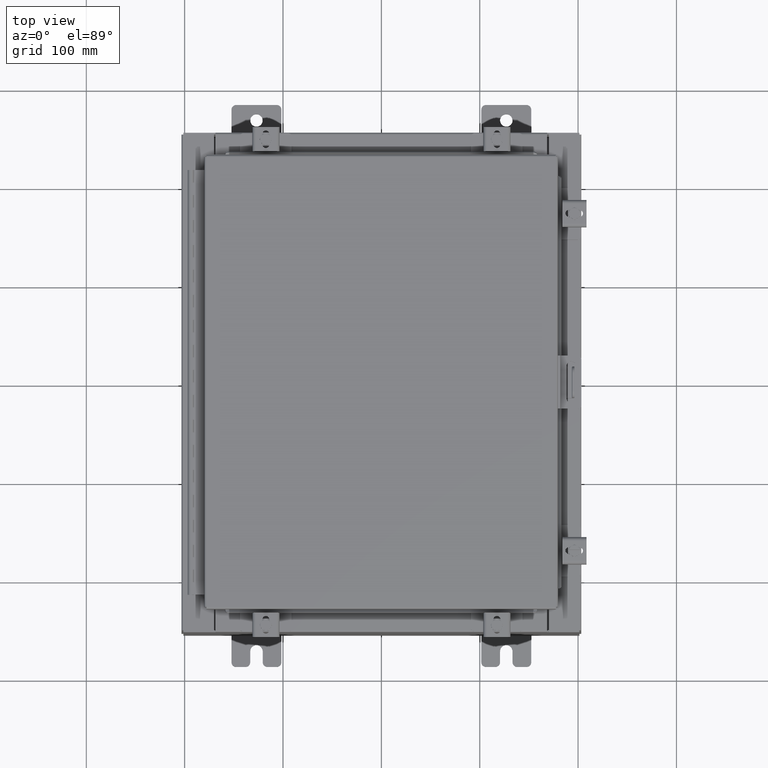
[diagram: clean part render]
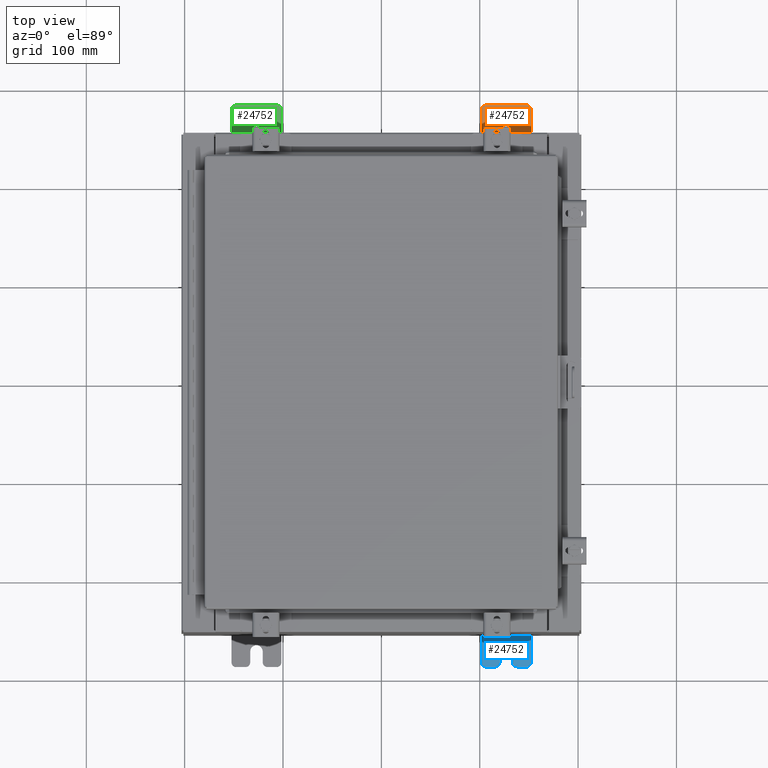
[diagram: same view with three faces highlighted in distinct colors, each labeled with its STEP entity id]
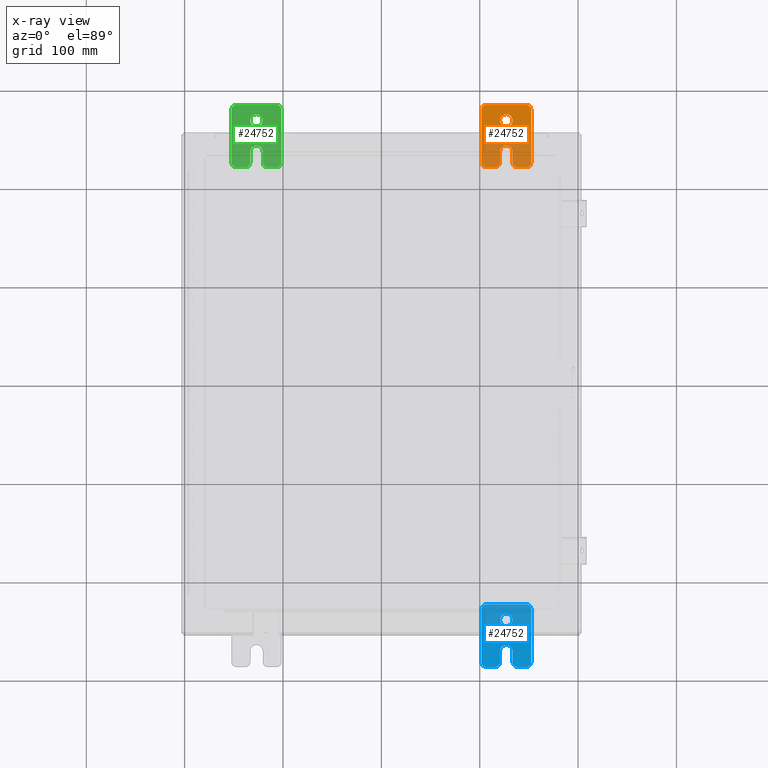
[diagram: x-ray of the same camera — body ghosted, the three highlighted faces saturated]
A machine part, top view with three faces highlighted in distinct colors.
The next image is the same camera in x-ray (body ghosted, the three faces saturated) — at least one of them is partly hidden behind the body in this view.
Their STEP definitions:

[orange] entity #24752 — the highlighted planar face has unit normal (0, 0, 1).
#510 = ORIENTED_EDGE ( 'NONE', *, *, #27260, .T. ) ;
#514 = CARTESIAN_POINT ( 'NONE',  ( 0.0000000000000000000, 0.0000000000000000000, 0.0000000000000000000 ) ) ;
#690 = DIRECTION ( 'NONE',  ( 0.0000000000000000000, -1.639108796198553600E-015, -1.000000000000000000 ) ) ;
#1029 = CARTESIAN_POINT ( 'NONE',  ( 0.0000000000000000000, -1.060000000000004100, -0.8100000000000050500 ) ) ;
#1070 = VERTEX_POINT ( 'NONE', #10648 ) ;
#1075 = VERTEX_POINT ( 'NONE', #28833 ) ;
#1352 = AXIS2_PLACEMENT_3D ( 'NONE', #16169, #2537, #18463 ) ;
#1666 = ORIENTED_EDGE ( 'NONE', *, *, #19814, .F. ) ;
#2408 = VERTEX_POINT ( 'NONE', #27002 ) ;
#2468 = LINE ( 'NONE', #8462, #20591 ) ;
#2537 = DIRECTION ( 'NONE',  ( 1.000000000000000000, 0.0000000000000000000, -0.0000000000000000000 ) ) ;
#2547 = CARTESIAN_POINT ( 'NONE',  ( 4.780733988912460100E-016, -0.6249999999999993300, -0.2499999999999993900 ) ) ;
#2594 = DIRECTION ( 'NONE',  ( 0.0000000000000000000, -1.639108796198553600E-015, -1.000000000000000000 ) ) ;
#2758 = VECTOR ( 'NONE', #27844, 39.37007874015748100 ) ;
#3201 = FACE_OUTER_BOUND ( 'NONE', #15350, .T. ) ;
#3322 = DIRECTION ( 'NONE',  ( 0.0000000000000000000, 0.0000000000000000000, -1.000000000000000000 ) ) ;
#3345 = LINE ( 'NONE', #2547, #8678 ) ;
#3454 = ORIENTED_EDGE ( 'NONE', *, *, #5480, .F. ) ;
#3864 = ORIENTED_EDGE ( 'NONE', *, *, #7414, .T. ) ;
#4107 = VERTEX_POINT ( 'NONE', #11406 ) ;
#4707 = CARTESIAN_POINT ( 'NONE',  ( 0.0000000000000000000, 1.249999999999997600, 0.9999999999999951200 ) ) ;
#4826 = DIRECTION ( 'NONE',  ( -6.556435184794182400E-016, -1.000000000000000000, -1.639108796198545600E-016 ) ) ;
#4869 = LINE ( 'NONE', #4707, #16266 ) ;
#5094 = DIRECTION ( 'NONE',  ( 1.000000000000000000, 0.0000000000000000000, -0.0000000000000000000 ) ) ;
#5402 = CARTESIAN_POINT ( 'NONE',  ( 4.039428427013647300E-016, 0.6249999999999992200, -9.783840404509077400E-018 ) ) ;
#5480 = EDGE_CURVE ( 'NONE', #25933, #17534, #23495, .T. ) ;
#5635 = CIRCLE ( 'NONE', #1352, 0.1900000000000011100 ) ;
#6022 = ORIENTED_EDGE ( 'NONE', *, *, #12471, .T. ) ;
#6085 = ORIENTED_EDGE ( 'NONE', *, *, #15577, .T. ) ;
#6402 = DIRECTION ( 'NONE',  ( 1.000000000000000000, 0.0000000000000000000, -0.0000000000000000000 ) ) ;
#6734 = ORIENTED_EDGE ( 'NONE', *, *, #12816, .T. ) ;
#7366 = CIRCLE ( 'NONE', #20611, 0.2499999999999999200 ) ;
#7414 = EDGE_CURVE ( 'NONE', #12318, #24871, #23390, .T. ) ;
#7451 = CARTESIAN_POINT ( 'NONE',  ( 0.0000000000000000000, -1.250000000000002200, 0.9999999999999992200 ) ) ;
#7522 = EDGE_CURVE ( 'NONE', #8264, #26711, #9200, .T. ) ;
#7682 = CARTESIAN_POINT ( 'NONE',  ( 4.780733988912460100E-016, -0.6249999999999993300, -0.2499999999999998600 ) ) ;
#7689 = DIRECTION ( 'NONE',  ( -5.163192708025533800E-017, 0.0000000000000000000, -1.000000000000000000 ) ) ;
#7767 = EDGE_CURVE ( 'NONE', #2408, #12318, #2468, .T. ) ;
#8264 = VERTEX_POINT ( 'NONE', #25468 ) ;
#8287 = AXIS2_PLACEMENT_3D ( 'NONE', #10841, #26720, #13144 ) ;
#8343 = CARTESIAN_POINT ( 'NONE',  ( 4.039428427013647300E-016, 0.6249999999999992200, -9.783840404509077400E-018 ) ) ;
#8462 = CARTESIAN_POINT ( 'NONE',  ( 6.829619984160658000E-017, -1.250000000000003800, 0.2500000000000005000 ) ) ;
#8511 = VECTOR ( 'NONE', #22746, 39.37007874015748100 ) ;
#8549 = ORIENTED_EDGE ( 'NONE', *, *, #11742, .T. ) ;
#8678 = VECTOR ( 'NONE', #4826, 39.37007874015748100 ) ;
#8999 = AXIS2_PLACEMENT_3D ( 'NONE', #10268, #26132, #12557 ) ;
#9139 = AXIS2_PLACEMENT_3D ( 'NONE', #20023, #6402, #22272 ) ;
#9200 = CIRCLE ( 'NONE', #22668, 0.1900000000000011100 ) ;
#9288 = DIRECTION ( 'NONE',  ( 0.0000000000000000000, -1.000000000000000000, 1.639108796198558100E-015 ) ) ;
#9500 = AXIS2_PLACEMENT_3D ( 'NONE', #8343, #24194, #10622 ) ;
#9786 = AXIS2_PLACEMENT_3D ( 'NONE', #514, #5094, #20987 ) ;
#10075 = CARTESIAN_POINT ( 'NONE',  ( 1.928684683526964400E-016, -1.060000000000003400, -0.2499999999999994400 ) ) ;
#10154 = ORIENTED_EDGE ( 'NONE', *, *, #13170, .T. ) ;
#10268 = CARTESIAN_POINT ( 'NONE',  ( 4.780733988912460100E-016, -0.6249999999999993300, 5.858939755051854500E-017 ) ) ;
#10622 = DIRECTION ( 'NONE',  ( -5.163192708025533800E-017, 0.0000000000000000000, -1.000000000000000000 ) ) ;
#10648 = CARTESIAN_POINT ( 'NONE',  ( 0.0000000000000000000, 1.059999999999996500, 0.9999999999999953400 ) ) ;
#10683 = CARTESIAN_POINT ( 'NONE',  ( 3.910348609313009100E-016, 0.6249999999999992200, -0.2499999999999999200 ) ) ;
#10841 = CARTESIAN_POINT ( 'NONE',  ( 0.0000000000000000000, -1.060000000000003400, -0.4400000000000005000 ) ) ;
#10926 = LINE ( 'NONE', #13932, #27617 ) ;
#11368 = CARTESIAN_POINT ( 'NONE',  ( 0.0000000000000000000, -1.250000000000005600, -1.000000000000006200 ) ) ;
#11406 = CARTESIAN_POINT ( 'NONE',  ( 0.0000000000000000000, -1.060000000000004500, -1.000000000000006400 ) ) ;
#11742 = EDGE_CURVE ( 'NONE', #15698, #2408, #16301, .T. ) ;
#11809 = ORIENTED_EDGE ( 'NONE', *, *, #7522, .T. ) ;
#11819 = CARTESIAN_POINT ( 'NONE',  ( 0.0000000000000000000, 1.249999999999994700, -0.8100000000000092700 ) ) ;
#12242 = ORIENTED_EDGE ( 'NONE', *, *, #22356, .T. ) ;
#12318 = VERTEX_POINT ( 'NONE', #24575 ) ;
#12358 = ORIENTED_EDGE ( 'NONE', *, *, #20482, .T. ) ;
#12471 = EDGE_CURVE ( 'NONE', #1075, #1070, #5635, .T. ) ;
#12557 = DIRECTION ( 'NONE',  ( -6.523827964459551700E-016, -1.000000000000000000, 0.0000000000000000000 ) ) ;
#12816 = EDGE_CURVE ( 'NONE', #16542, #29302, #19846, .T. ) ;
#12958 = CARTESIAN_POINT ( 'NONE',  ( 0.0000000000000000000, -1.060000000000001600, 0.8099999999999978300 ) ) ;
#12981 = CARTESIAN_POINT ( 'NONE',  ( 0.0000000000000000000, 1.059999999999993600, -0.8100000000000089400 ) ) ;
#13050 = EDGE_CURVE ( 'NONE', #29302, #1075, #13439, .T. ) ;
#13144 = DIRECTION ( 'NONE',  ( 0.0000000000000000000, 0.0000000000000000000, -1.000000000000000000 ) ) ;
#13170 = EDGE_CURVE ( 'NONE', #22327, #4107, #27966, .T. ) ;
#13439 = LINE ( 'NONE', #14253, #2758 ) ;
#13932 = CARTESIAN_POINT ( 'NONE',  ( 0.0000000000000000000, -1.250000000000002200, 0.9999999999999992200 ) ) ;
#14253 = CARTESIAN_POINT ( 'NONE',  ( 0.0000000000000000000, 1.249999999999994200, -1.000000000000010400 ) ) ;
#15249 = DIRECTION ( 'NONE',  ( 0.0000000000000000000, 0.0000000000000000000, -1.000000000000000000 ) ) ;
#15278 = DIRECTION ( 'NONE',  ( 0.0000000000000000000, 0.0000000000000000000, -1.000000000000000000 ) ) ;
#15313 = FACE_BOUND ( 'NONE', #26076, .T. ) ;
#15350 = EDGE_LOOP ( 'NONE', ( #23053, #11809, #6085, #8549, #27349, #3864, #12242, #12358, #510, #10154, #17813, #6734, #21886, #6022 ) ) ;
#15577 = EDGE_CURVE ( 'NONE', #26711, #15698, #24231, .T. ) ;
#15698 = VERTEX_POINT ( 'NONE', #26201 ) ;
#16031 = AXIS2_PLACEMENT_3D ( 'NONE', #12981, #28859, #15278 ) ;
#16169 = CARTESIAN_POINT ( 'NONE',  ( 0.0000000000000000000, 1.059999999999996300, 0.8099999999999938400 ) ) ;
#16266 = VECTOR ( 'NONE', #9288, 39.37007874015748100 ) ;
#16301 = CIRCLE ( 'NONE', #9139, 0.1900000000000011400 ) ;
#16542 = VERTEX_POINT ( 'NONE', #16705 ) ;
#16705 = CARTESIAN_POINT ( 'NONE',  ( 0.0000000000000000000, 1.059999999999993400, -1.000000000000010000 ) ) ;
#16946 = DIRECTION ( 'NONE',  ( 1.000000000000000000, 0.0000000000000000000, -0.0000000000000000000 ) ) ;
#17534 = VERTEX_POINT ( 'NONE', #10683 ) ;
#17662 = EDGE_CURVE ( 'NONE', #4107, #16542, #20571, .T. ) ;
#17813 = ORIENTED_EDGE ( 'NONE', *, *, #17662, .T. ) ;
#18463 = DIRECTION ( 'NONE',  ( 0.0000000000000000000, 0.0000000000000000000, -1.000000000000000000 ) ) ;
#18732 = PLANE ( 'NONE',  #9786 ) ;
#19636 = EDGE_CURVE ( 'NONE', #1070, #8264, #4869, .T. ) ;
#19814 = EDGE_CURVE ( 'NONE', #17534, #25933, #7366, .T. ) ;
#19842 = VERTEX_POINT ( 'NONE', #10075 ) ;
#19846 = CIRCLE ( 'NONE', #16031, 0.1900000000000011100 ) ;
#20023 = CARTESIAN_POINT ( 'NONE',  ( 0.0000000000000000000, -1.060000000000002100, 0.4400000000000016700 ) ) ;
#20270 = VERTEX_POINT ( 'NONE', #28233 ) ;
#20482 = EDGE_CURVE ( 'NONE', #19842, #20270, #21873, .T. ) ;
#20571 = LINE ( 'NONE', #11368, #8511 ) ;
#20591 = VECTOR ( 'NONE', #24318, 39.37007874015748100 ) ;
#20611 = AXIS2_PLACEMENT_3D ( 'NONE', #5402, #21301, #7689 ) ;
#20987 = DIRECTION ( 'NONE',  ( -0.0000000000000000000, 0.0000000000000000000, -1.000000000000000000 ) ) ;
#21301 = DIRECTION ( 'NONE',  ( 1.000000000000000000, -0.0000000000000000000, -5.163192708025532000E-017 ) ) ;
#21873 = CIRCLE ( 'NONE', #8287, 0.1900000000000011100 ) ;
#21886 = ORIENTED_EDGE ( 'NONE', *, *, #13050, .T. ) ;
#22272 = DIRECTION ( 'NONE',  ( 0.0000000000000000000, 0.0000000000000000000, -1.000000000000000000 ) ) ;
#22327 = VERTEX_POINT ( 'NONE', #25169 ) ;
#22356 = EDGE_CURVE ( 'NONE', #24871, #19842, #3345, .T. ) ;
#22668 = AXIS2_PLACEMENT_3D ( 'NONE', #12958, #28839, #15249 ) ;
#22746 = DIRECTION ( 'NONE',  ( 0.0000000000000000000, 1.000000000000000000, -1.639108796198558100E-015 ) ) ;
#23053 = ORIENTED_EDGE ( 'NONE', *, *, #19636, .T. ) ;
#23390 = CIRCLE ( 'NONE', #8999, 0.2499999999999999200 ) ;
#23495 = CIRCLE ( 'NONE', #9500, 0.2499999999999999200 ) ;
#23514 = VECTOR ( 'NONE', #690, 39.37007874015748100 ) ;
#24194 = DIRECTION ( 'NONE',  ( 1.000000000000000000, -0.0000000000000000000, -5.163192708025532000E-017 ) ) ;
#24231 = LINE ( 'NONE', #7451, #23514 ) ;
#24318 = DIRECTION ( 'NONE',  ( 6.556435184794182400E-016, 1.000000000000000000, 0.0000000000000000000 ) ) ;
#24575 = CARTESIAN_POINT ( 'NONE',  ( 0.0000000000000000000, -0.6249999999999992200, 0.2500000000000005000 ) ) ;
#24752 = ADVANCED_FACE ( 'NONE', ( #15313, #3201 ), #18732, .T. ) ;
#24786 = CARTESIAN_POINT ( 'NONE',  ( 4.168508244714285900E-016, 0.6249999999999992200, 0.2499999999999999200 ) ) ;
#24871 = VERTEX_POINT ( 'NONE', #7682 ) ;
#25169 = CARTESIAN_POINT ( 'NONE',  ( 0.0000000000000000000, -1.250000000000005300, -0.8100000000000047200 ) ) ;
#25468 = CARTESIAN_POINT ( 'NONE',  ( 0.0000000000000000000, -1.060000000000001200, 0.9999999999999988900 ) ) ;
#25933 = VERTEX_POINT ( 'NONE', #24786 ) ;
#26076 = EDGE_LOOP ( 'NONE', ( #1666, #3454 ) ) ;
#26132 = DIRECTION ( 'NONE',  ( -1.000000000000000000, 6.523827964459549700E-016, 5.163192708025532000E-017 ) ) ;
#26201 = CARTESIAN_POINT ( 'NONE',  ( 0.0000000000000000000, -1.250000000000003100, 0.4400000000000020000 ) ) ;
#26711 = VERTEX_POINT ( 'NONE', #28146 ) ;
#26720 = DIRECTION ( 'NONE',  ( 1.000000000000000000, 0.0000000000000000000, -0.0000000000000000000 ) ) ;
#27002 = CARTESIAN_POINT ( 'NONE',  ( 1.928684683526972300E-016, -1.060000000000002100, 0.2500000000000005000 ) ) ;
#27260 = EDGE_CURVE ( 'NONE', #20270, #22327, #10926, .T. ) ;
#27349 = ORIENTED_EDGE ( 'NONE', *, *, #7767, .T. ) ;
#27617 = VECTOR ( 'NONE', #2594, 39.37007874015748100 ) ;
#27844 = DIRECTION ( 'NONE',  ( 0.0000000000000000000, 1.639108796198553600E-015, 1.000000000000000000 ) ) ;
#27966 = CIRCLE ( 'NONE', #29174, 0.1900000000000011100 ) ;
#28146 = CARTESIAN_POINT ( 'NONE',  ( 0.0000000000000000000, -1.250000000000002400, 0.8099999999999980500 ) ) ;
#28233 = CARTESIAN_POINT ( 'NONE',  ( 0.0000000000000000000, -1.250000000000004700, -0.4400000000000002200 ) ) ;
#28833 = CARTESIAN_POINT ( 'NONE',  ( 0.0000000000000000000, 1.249999999999997300, 0.8099999999999935000 ) ) ;
#28839 = DIRECTION ( 'NONE',  ( 1.000000000000000000, 0.0000000000000000000, -0.0000000000000000000 ) ) ;
#28859 = DIRECTION ( 'NONE',  ( 1.000000000000000000, 0.0000000000000000000, -0.0000000000000000000 ) ) ;
#29174 = AXIS2_PLACEMENT_3D ( 'NONE', #1029, #16946, #3322 ) ;
#29302 = VERTEX_POINT ( 'NONE', #11819 ) ;

[blue] entity #24752 — the highlighted planar face has unit normal (0, 0, 1).
#510 = ORIENTED_EDGE ( 'NONE', *, *, #27260, .T. ) ;
#514 = CARTESIAN_POINT ( 'NONE',  ( 0.0000000000000000000, 0.0000000000000000000, 0.0000000000000000000 ) ) ;
#690 = DIRECTION ( 'NONE',  ( 0.0000000000000000000, -1.639108796198553600E-015, -1.000000000000000000 ) ) ;
#1029 = CARTESIAN_POINT ( 'NONE',  ( 0.0000000000000000000, -1.060000000000004100, -0.8100000000000050500 ) ) ;
#1070 = VERTEX_POINT ( 'NONE', #10648 ) ;
#1075 = VERTEX_POINT ( 'NONE', #28833 ) ;
#1352 = AXIS2_PLACEMENT_3D ( 'NONE', #16169, #2537, #18463 ) ;
#1666 = ORIENTED_EDGE ( 'NONE', *, *, #19814, .F. ) ;
#2408 = VERTEX_POINT ( 'NONE', #27002 ) ;
#2468 = LINE ( 'NONE', #8462, #20591 ) ;
#2537 = DIRECTION ( 'NONE',  ( 1.000000000000000000, 0.0000000000000000000, -0.0000000000000000000 ) ) ;
#2547 = CARTESIAN_POINT ( 'NONE',  ( 4.780733988912460100E-016, -0.6249999999999993300, -0.2499999999999993900 ) ) ;
#2594 = DIRECTION ( 'NONE',  ( 0.0000000000000000000, -1.639108796198553600E-015, -1.000000000000000000 ) ) ;
#2758 = VECTOR ( 'NONE', #27844, 39.37007874015748100 ) ;
#3201 = FACE_OUTER_BOUND ( 'NONE', #15350, .T. ) ;
#3322 = DIRECTION ( 'NONE',  ( 0.0000000000000000000, 0.0000000000000000000, -1.000000000000000000 ) ) ;
#3345 = LINE ( 'NONE', #2547, #8678 ) ;
#3454 = ORIENTED_EDGE ( 'NONE', *, *, #5480, .F. ) ;
#3864 = ORIENTED_EDGE ( 'NONE', *, *, #7414, .T. ) ;
#4107 = VERTEX_POINT ( 'NONE', #11406 ) ;
#4707 = CARTESIAN_POINT ( 'NONE',  ( 0.0000000000000000000, 1.249999999999997600, 0.9999999999999951200 ) ) ;
#4826 = DIRECTION ( 'NONE',  ( -6.556435184794182400E-016, -1.000000000000000000, -1.639108796198545600E-016 ) ) ;
#4869 = LINE ( 'NONE', #4707, #16266 ) ;
#5094 = DIRECTION ( 'NONE',  ( 1.000000000000000000, 0.0000000000000000000, -0.0000000000000000000 ) ) ;
#5402 = CARTESIAN_POINT ( 'NONE',  ( 4.039428427013647300E-016, 0.6249999999999992200, -9.783840404509077400E-018 ) ) ;
#5480 = EDGE_CURVE ( 'NONE', #25933, #17534, #23495, .T. ) ;
#5635 = CIRCLE ( 'NONE', #1352, 0.1900000000000011100 ) ;
#6022 = ORIENTED_EDGE ( 'NONE', *, *, #12471, .T. ) ;
#6085 = ORIENTED_EDGE ( 'NONE', *, *, #15577, .T. ) ;
#6402 = DIRECTION ( 'NONE',  ( 1.000000000000000000, 0.0000000000000000000, -0.0000000000000000000 ) ) ;
#6734 = ORIENTED_EDGE ( 'NONE', *, *, #12816, .T. ) ;
#7366 = CIRCLE ( 'NONE', #20611, 0.2499999999999999200 ) ;
#7414 = EDGE_CURVE ( 'NONE', #12318, #24871, #23390, .T. ) ;
#7451 = CARTESIAN_POINT ( 'NONE',  ( 0.0000000000000000000, -1.250000000000002200, 0.9999999999999992200 ) ) ;
#7522 = EDGE_CURVE ( 'NONE', #8264, #26711, #9200, .T. ) ;
#7682 = CARTESIAN_POINT ( 'NONE',  ( 4.780733988912460100E-016, -0.6249999999999993300, -0.2499999999999998600 ) ) ;
#7689 = DIRECTION ( 'NONE',  ( -5.163192708025533800E-017, 0.0000000000000000000, -1.000000000000000000 ) ) ;
#7767 = EDGE_CURVE ( 'NONE', #2408, #12318, #2468, .T. ) ;
#8264 = VERTEX_POINT ( 'NONE', #25468 ) ;
#8287 = AXIS2_PLACEMENT_3D ( 'NONE', #10841, #26720, #13144 ) ;
#8343 = CARTESIAN_POINT ( 'NONE',  ( 4.039428427013647300E-016, 0.6249999999999992200, -9.783840404509077400E-018 ) ) ;
#8462 = CARTESIAN_POINT ( 'NONE',  ( 6.829619984160658000E-017, -1.250000000000003800, 0.2500000000000005000 ) ) ;
#8511 = VECTOR ( 'NONE', #22746, 39.37007874015748100 ) ;
#8549 = ORIENTED_EDGE ( 'NONE', *, *, #11742, .T. ) ;
#8678 = VECTOR ( 'NONE', #4826, 39.37007874015748100 ) ;
#8999 = AXIS2_PLACEMENT_3D ( 'NONE', #10268, #26132, #12557 ) ;
#9139 = AXIS2_PLACEMENT_3D ( 'NONE', #20023, #6402, #22272 ) ;
#9200 = CIRCLE ( 'NONE', #22668, 0.1900000000000011100 ) ;
#9288 = DIRECTION ( 'NONE',  ( 0.0000000000000000000, -1.000000000000000000, 1.639108796198558100E-015 ) ) ;
#9500 = AXIS2_PLACEMENT_3D ( 'NONE', #8343, #24194, #10622 ) ;
#9786 = AXIS2_PLACEMENT_3D ( 'NONE', #514, #5094, #20987 ) ;
#10075 = CARTESIAN_POINT ( 'NONE',  ( 1.928684683526964400E-016, -1.060000000000003400, -0.2499999999999994400 ) ) ;
#10154 = ORIENTED_EDGE ( 'NONE', *, *, #13170, .T. ) ;
#10268 = CARTESIAN_POINT ( 'NONE',  ( 4.780733988912460100E-016, -0.6249999999999993300, 5.858939755051854500E-017 ) ) ;
#10622 = DIRECTION ( 'NONE',  ( -5.163192708025533800E-017, 0.0000000000000000000, -1.000000000000000000 ) ) ;
#10648 = CARTESIAN_POINT ( 'NONE',  ( 0.0000000000000000000, 1.059999999999996500, 0.9999999999999953400 ) ) ;
#10683 = CARTESIAN_POINT ( 'NONE',  ( 3.910348609313009100E-016, 0.6249999999999992200, -0.2499999999999999200 ) ) ;
#10841 = CARTESIAN_POINT ( 'NONE',  ( 0.0000000000000000000, -1.060000000000003400, -0.4400000000000005000 ) ) ;
#10926 = LINE ( 'NONE', #13932, #27617 ) ;
#11368 = CARTESIAN_POINT ( 'NONE',  ( 0.0000000000000000000, -1.250000000000005600, -1.000000000000006200 ) ) ;
#11406 = CARTESIAN_POINT ( 'NONE',  ( 0.0000000000000000000, -1.060000000000004500, -1.000000000000006400 ) ) ;
#11742 = EDGE_CURVE ( 'NONE', #15698, #2408, #16301, .T. ) ;
#11809 = ORIENTED_EDGE ( 'NONE', *, *, #7522, .T. ) ;
#11819 = CARTESIAN_POINT ( 'NONE',  ( 0.0000000000000000000, 1.249999999999994700, -0.8100000000000092700 ) ) ;
#12242 = ORIENTED_EDGE ( 'NONE', *, *, #22356, .T. ) ;
#12318 = VERTEX_POINT ( 'NONE', #24575 ) ;
#12358 = ORIENTED_EDGE ( 'NONE', *, *, #20482, .T. ) ;
#12471 = EDGE_CURVE ( 'NONE', #1075, #1070, #5635, .T. ) ;
#12557 = DIRECTION ( 'NONE',  ( -6.523827964459551700E-016, -1.000000000000000000, 0.0000000000000000000 ) ) ;
#12816 = EDGE_CURVE ( 'NONE', #16542, #29302, #19846, .T. ) ;
#12958 = CARTESIAN_POINT ( 'NONE',  ( 0.0000000000000000000, -1.060000000000001600, 0.8099999999999978300 ) ) ;
#12981 = CARTESIAN_POINT ( 'NONE',  ( 0.0000000000000000000, 1.059999999999993600, -0.8100000000000089400 ) ) ;
#13050 = EDGE_CURVE ( 'NONE', #29302, #1075, #13439, .T. ) ;
#13144 = DIRECTION ( 'NONE',  ( 0.0000000000000000000, 0.0000000000000000000, -1.000000000000000000 ) ) ;
#13170 = EDGE_CURVE ( 'NONE', #22327, #4107, #27966, .T. ) ;
#13439 = LINE ( 'NONE', #14253, #2758 ) ;
#13932 = CARTESIAN_POINT ( 'NONE',  ( 0.0000000000000000000, -1.250000000000002200, 0.9999999999999992200 ) ) ;
#14253 = CARTESIAN_POINT ( 'NONE',  ( 0.0000000000000000000, 1.249999999999994200, -1.000000000000010400 ) ) ;
#15249 = DIRECTION ( 'NONE',  ( 0.0000000000000000000, 0.0000000000000000000, -1.000000000000000000 ) ) ;
#15278 = DIRECTION ( 'NONE',  ( 0.0000000000000000000, 0.0000000000000000000, -1.000000000000000000 ) ) ;
#15313 = FACE_BOUND ( 'NONE', #26076, .T. ) ;
#15350 = EDGE_LOOP ( 'NONE', ( #23053, #11809, #6085, #8549, #27349, #3864, #12242, #12358, #510, #10154, #17813, #6734, #21886, #6022 ) ) ;
#15577 = EDGE_CURVE ( 'NONE', #26711, #15698, #24231, .T. ) ;
#15698 = VERTEX_POINT ( 'NONE', #26201 ) ;
#16031 = AXIS2_PLACEMENT_3D ( 'NONE', #12981, #28859, #15278 ) ;
#16169 = CARTESIAN_POINT ( 'NONE',  ( 0.0000000000000000000, 1.059999999999996300, 0.8099999999999938400 ) ) ;
#16266 = VECTOR ( 'NONE', #9288, 39.37007874015748100 ) ;
#16301 = CIRCLE ( 'NONE', #9139, 0.1900000000000011400 ) ;
#16542 = VERTEX_POINT ( 'NONE', #16705 ) ;
#16705 = CARTESIAN_POINT ( 'NONE',  ( 0.0000000000000000000, 1.059999999999993400, -1.000000000000010000 ) ) ;
#16946 = DIRECTION ( 'NONE',  ( 1.000000000000000000, 0.0000000000000000000, -0.0000000000000000000 ) ) ;
#17534 = VERTEX_POINT ( 'NONE', #10683 ) ;
#17662 = EDGE_CURVE ( 'NONE', #4107, #16542, #20571, .T. ) ;
#17813 = ORIENTED_EDGE ( 'NONE', *, *, #17662, .T. ) ;
#18463 = DIRECTION ( 'NONE',  ( 0.0000000000000000000, 0.0000000000000000000, -1.000000000000000000 ) ) ;
#18732 = PLANE ( 'NONE',  #9786 ) ;
#19636 = EDGE_CURVE ( 'NONE', #1070, #8264, #4869, .T. ) ;
#19814 = EDGE_CURVE ( 'NONE', #17534, #25933, #7366, .T. ) ;
#19842 = VERTEX_POINT ( 'NONE', #10075 ) ;
#19846 = CIRCLE ( 'NONE', #16031, 0.1900000000000011100 ) ;
#20023 = CARTESIAN_POINT ( 'NONE',  ( 0.0000000000000000000, -1.060000000000002100, 0.4400000000000016700 ) ) ;
#20270 = VERTEX_POINT ( 'NONE', #28233 ) ;
#20482 = EDGE_CURVE ( 'NONE', #19842, #20270, #21873, .T. ) ;
#20571 = LINE ( 'NONE', #11368, #8511 ) ;
#20591 = VECTOR ( 'NONE', #24318, 39.37007874015748100 ) ;
#20611 = AXIS2_PLACEMENT_3D ( 'NONE', #5402, #21301, #7689 ) ;
#20987 = DIRECTION ( 'NONE',  ( -0.0000000000000000000, 0.0000000000000000000, -1.000000000000000000 ) ) ;
#21301 = DIRECTION ( 'NONE',  ( 1.000000000000000000, -0.0000000000000000000, -5.163192708025532000E-017 ) ) ;
#21873 = CIRCLE ( 'NONE', #8287, 0.1900000000000011100 ) ;
#21886 = ORIENTED_EDGE ( 'NONE', *, *, #13050, .T. ) ;
#22272 = DIRECTION ( 'NONE',  ( 0.0000000000000000000, 0.0000000000000000000, -1.000000000000000000 ) ) ;
#22327 = VERTEX_POINT ( 'NONE', #25169 ) ;
#22356 = EDGE_CURVE ( 'NONE', #24871, #19842, #3345, .T. ) ;
#22668 = AXIS2_PLACEMENT_3D ( 'NONE', #12958, #28839, #15249 ) ;
#22746 = DIRECTION ( 'NONE',  ( 0.0000000000000000000, 1.000000000000000000, -1.639108796198558100E-015 ) ) ;
#23053 = ORIENTED_EDGE ( 'NONE', *, *, #19636, .T. ) ;
#23390 = CIRCLE ( 'NONE', #8999, 0.2499999999999999200 ) ;
#23495 = CIRCLE ( 'NONE', #9500, 0.2499999999999999200 ) ;
#23514 = VECTOR ( 'NONE', #690, 39.37007874015748100 ) ;
#24194 = DIRECTION ( 'NONE',  ( 1.000000000000000000, -0.0000000000000000000, -5.163192708025532000E-017 ) ) ;
#24231 = LINE ( 'NONE', #7451, #23514 ) ;
#24318 = DIRECTION ( 'NONE',  ( 6.556435184794182400E-016, 1.000000000000000000, 0.0000000000000000000 ) ) ;
#24575 = CARTESIAN_POINT ( 'NONE',  ( 0.0000000000000000000, -0.6249999999999992200, 0.2500000000000005000 ) ) ;
#24752 = ADVANCED_FACE ( 'NONE', ( #15313, #3201 ), #18732, .T. ) ;
#24786 = CARTESIAN_POINT ( 'NONE',  ( 4.168508244714285900E-016, 0.6249999999999992200, 0.2499999999999999200 ) ) ;
#24871 = VERTEX_POINT ( 'NONE', #7682 ) ;
#25169 = CARTESIAN_POINT ( 'NONE',  ( 0.0000000000000000000, -1.250000000000005300, -0.8100000000000047200 ) ) ;
#25468 = CARTESIAN_POINT ( 'NONE',  ( 0.0000000000000000000, -1.060000000000001200, 0.9999999999999988900 ) ) ;
#25933 = VERTEX_POINT ( 'NONE', #24786 ) ;
#26076 = EDGE_LOOP ( 'NONE', ( #1666, #3454 ) ) ;
#26132 = DIRECTION ( 'NONE',  ( -1.000000000000000000, 6.523827964459549700E-016, 5.163192708025532000E-017 ) ) ;
#26201 = CARTESIAN_POINT ( 'NONE',  ( 0.0000000000000000000, -1.250000000000003100, 0.4400000000000020000 ) ) ;
#26711 = VERTEX_POINT ( 'NONE', #28146 ) ;
#26720 = DIRECTION ( 'NONE',  ( 1.000000000000000000, 0.0000000000000000000, -0.0000000000000000000 ) ) ;
#27002 = CARTESIAN_POINT ( 'NONE',  ( 1.928684683526972300E-016, -1.060000000000002100, 0.2500000000000005000 ) ) ;
#27260 = EDGE_CURVE ( 'NONE', #20270, #22327, #10926, .T. ) ;
#27349 = ORIENTED_EDGE ( 'NONE', *, *, #7767, .T. ) ;
#27617 = VECTOR ( 'NONE', #2594, 39.37007874015748100 ) ;
#27844 = DIRECTION ( 'NONE',  ( 0.0000000000000000000, 1.639108796198553600E-015, 1.000000000000000000 ) ) ;
#27966 = CIRCLE ( 'NONE', #29174, 0.1900000000000011100 ) ;
#28146 = CARTESIAN_POINT ( 'NONE',  ( 0.0000000000000000000, -1.250000000000002400, 0.8099999999999980500 ) ) ;
#28233 = CARTESIAN_POINT ( 'NONE',  ( 0.0000000000000000000, -1.250000000000004700, -0.4400000000000002200 ) ) ;
#28833 = CARTESIAN_POINT ( 'NONE',  ( 0.0000000000000000000, 1.249999999999997300, 0.8099999999999935000 ) ) ;
#28839 = DIRECTION ( 'NONE',  ( 1.000000000000000000, 0.0000000000000000000, -0.0000000000000000000 ) ) ;
#28859 = DIRECTION ( 'NONE',  ( 1.000000000000000000, 0.0000000000000000000, -0.0000000000000000000 ) ) ;
#29174 = AXIS2_PLACEMENT_3D ( 'NONE', #1029, #16946, #3322 ) ;
#29302 = VERTEX_POINT ( 'NONE', #11819 ) ;

[green] entity #24752 — the highlighted planar face has unit normal (0, 0, 1).
#510 = ORIENTED_EDGE ( 'NONE', *, *, #27260, .T. ) ;
#514 = CARTESIAN_POINT ( 'NONE',  ( 0.0000000000000000000, 0.0000000000000000000, 0.0000000000000000000 ) ) ;
#690 = DIRECTION ( 'NONE',  ( 0.0000000000000000000, -1.639108796198553600E-015, -1.000000000000000000 ) ) ;
#1029 = CARTESIAN_POINT ( 'NONE',  ( 0.0000000000000000000, -1.060000000000004100, -0.8100000000000050500 ) ) ;
#1070 = VERTEX_POINT ( 'NONE', #10648 ) ;
#1075 = VERTEX_POINT ( 'NONE', #28833 ) ;
#1352 = AXIS2_PLACEMENT_3D ( 'NONE', #16169, #2537, #18463 ) ;
#1666 = ORIENTED_EDGE ( 'NONE', *, *, #19814, .F. ) ;
#2408 = VERTEX_POINT ( 'NONE', #27002 ) ;
#2468 = LINE ( 'NONE', #8462, #20591 ) ;
#2537 = DIRECTION ( 'NONE',  ( 1.000000000000000000, 0.0000000000000000000, -0.0000000000000000000 ) ) ;
#2547 = CARTESIAN_POINT ( 'NONE',  ( 4.780733988912460100E-016, -0.6249999999999993300, -0.2499999999999993900 ) ) ;
#2594 = DIRECTION ( 'NONE',  ( 0.0000000000000000000, -1.639108796198553600E-015, -1.000000000000000000 ) ) ;
#2758 = VECTOR ( 'NONE', #27844, 39.37007874015748100 ) ;
#3201 = FACE_OUTER_BOUND ( 'NONE', #15350, .T. ) ;
#3322 = DIRECTION ( 'NONE',  ( 0.0000000000000000000, 0.0000000000000000000, -1.000000000000000000 ) ) ;
#3345 = LINE ( 'NONE', #2547, #8678 ) ;
#3454 = ORIENTED_EDGE ( 'NONE', *, *, #5480, .F. ) ;
#3864 = ORIENTED_EDGE ( 'NONE', *, *, #7414, .T. ) ;
#4107 = VERTEX_POINT ( 'NONE', #11406 ) ;
#4707 = CARTESIAN_POINT ( 'NONE',  ( 0.0000000000000000000, 1.249999999999997600, 0.9999999999999951200 ) ) ;
#4826 = DIRECTION ( 'NONE',  ( -6.556435184794182400E-016, -1.000000000000000000, -1.639108796198545600E-016 ) ) ;
#4869 = LINE ( 'NONE', #4707, #16266 ) ;
#5094 = DIRECTION ( 'NONE',  ( 1.000000000000000000, 0.0000000000000000000, -0.0000000000000000000 ) ) ;
#5402 = CARTESIAN_POINT ( 'NONE',  ( 4.039428427013647300E-016, 0.6249999999999992200, -9.783840404509077400E-018 ) ) ;
#5480 = EDGE_CURVE ( 'NONE', #25933, #17534, #23495, .T. ) ;
#5635 = CIRCLE ( 'NONE', #1352, 0.1900000000000011100 ) ;
#6022 = ORIENTED_EDGE ( 'NONE', *, *, #12471, .T. ) ;
#6085 = ORIENTED_EDGE ( 'NONE', *, *, #15577, .T. ) ;
#6402 = DIRECTION ( 'NONE',  ( 1.000000000000000000, 0.0000000000000000000, -0.0000000000000000000 ) ) ;
#6734 = ORIENTED_EDGE ( 'NONE', *, *, #12816, .T. ) ;
#7366 = CIRCLE ( 'NONE', #20611, 0.2499999999999999200 ) ;
#7414 = EDGE_CURVE ( 'NONE', #12318, #24871, #23390, .T. ) ;
#7451 = CARTESIAN_POINT ( 'NONE',  ( 0.0000000000000000000, -1.250000000000002200, 0.9999999999999992200 ) ) ;
#7522 = EDGE_CURVE ( 'NONE', #8264, #26711, #9200, .T. ) ;
#7682 = CARTESIAN_POINT ( 'NONE',  ( 4.780733988912460100E-016, -0.6249999999999993300, -0.2499999999999998600 ) ) ;
#7689 = DIRECTION ( 'NONE',  ( -5.163192708025533800E-017, 0.0000000000000000000, -1.000000000000000000 ) ) ;
#7767 = EDGE_CURVE ( 'NONE', #2408, #12318, #2468, .T. ) ;
#8264 = VERTEX_POINT ( 'NONE', #25468 ) ;
#8287 = AXIS2_PLACEMENT_3D ( 'NONE', #10841, #26720, #13144 ) ;
#8343 = CARTESIAN_POINT ( 'NONE',  ( 4.039428427013647300E-016, 0.6249999999999992200, -9.783840404509077400E-018 ) ) ;
#8462 = CARTESIAN_POINT ( 'NONE',  ( 6.829619984160658000E-017, -1.250000000000003800, 0.2500000000000005000 ) ) ;
#8511 = VECTOR ( 'NONE', #22746, 39.37007874015748100 ) ;
#8549 = ORIENTED_EDGE ( 'NONE', *, *, #11742, .T. ) ;
#8678 = VECTOR ( 'NONE', #4826, 39.37007874015748100 ) ;
#8999 = AXIS2_PLACEMENT_3D ( 'NONE', #10268, #26132, #12557 ) ;
#9139 = AXIS2_PLACEMENT_3D ( 'NONE', #20023, #6402, #22272 ) ;
#9200 = CIRCLE ( 'NONE', #22668, 0.1900000000000011100 ) ;
#9288 = DIRECTION ( 'NONE',  ( 0.0000000000000000000, -1.000000000000000000, 1.639108796198558100E-015 ) ) ;
#9500 = AXIS2_PLACEMENT_3D ( 'NONE', #8343, #24194, #10622 ) ;
#9786 = AXIS2_PLACEMENT_3D ( 'NONE', #514, #5094, #20987 ) ;
#10075 = CARTESIAN_POINT ( 'NONE',  ( 1.928684683526964400E-016, -1.060000000000003400, -0.2499999999999994400 ) ) ;
#10154 = ORIENTED_EDGE ( 'NONE', *, *, #13170, .T. ) ;
#10268 = CARTESIAN_POINT ( 'NONE',  ( 4.780733988912460100E-016, -0.6249999999999993300, 5.858939755051854500E-017 ) ) ;
#10622 = DIRECTION ( 'NONE',  ( -5.163192708025533800E-017, 0.0000000000000000000, -1.000000000000000000 ) ) ;
#10648 = CARTESIAN_POINT ( 'NONE',  ( 0.0000000000000000000, 1.059999999999996500, 0.9999999999999953400 ) ) ;
#10683 = CARTESIAN_POINT ( 'NONE',  ( 3.910348609313009100E-016, 0.6249999999999992200, -0.2499999999999999200 ) ) ;
#10841 = CARTESIAN_POINT ( 'NONE',  ( 0.0000000000000000000, -1.060000000000003400, -0.4400000000000005000 ) ) ;
#10926 = LINE ( 'NONE', #13932, #27617 ) ;
#11368 = CARTESIAN_POINT ( 'NONE',  ( 0.0000000000000000000, -1.250000000000005600, -1.000000000000006200 ) ) ;
#11406 = CARTESIAN_POINT ( 'NONE',  ( 0.0000000000000000000, -1.060000000000004500, -1.000000000000006400 ) ) ;
#11742 = EDGE_CURVE ( 'NONE', #15698, #2408, #16301, .T. ) ;
#11809 = ORIENTED_EDGE ( 'NONE', *, *, #7522, .T. ) ;
#11819 = CARTESIAN_POINT ( 'NONE',  ( 0.0000000000000000000, 1.249999999999994700, -0.8100000000000092700 ) ) ;
#12242 = ORIENTED_EDGE ( 'NONE', *, *, #22356, .T. ) ;
#12318 = VERTEX_POINT ( 'NONE', #24575 ) ;
#12358 = ORIENTED_EDGE ( 'NONE', *, *, #20482, .T. ) ;
#12471 = EDGE_CURVE ( 'NONE', #1075, #1070, #5635, .T. ) ;
#12557 = DIRECTION ( 'NONE',  ( -6.523827964459551700E-016, -1.000000000000000000, 0.0000000000000000000 ) ) ;
#12816 = EDGE_CURVE ( 'NONE', #16542, #29302, #19846, .T. ) ;
#12958 = CARTESIAN_POINT ( 'NONE',  ( 0.0000000000000000000, -1.060000000000001600, 0.8099999999999978300 ) ) ;
#12981 = CARTESIAN_POINT ( 'NONE',  ( 0.0000000000000000000, 1.059999999999993600, -0.8100000000000089400 ) ) ;
#13050 = EDGE_CURVE ( 'NONE', #29302, #1075, #13439, .T. ) ;
#13144 = DIRECTION ( 'NONE',  ( 0.0000000000000000000, 0.0000000000000000000, -1.000000000000000000 ) ) ;
#13170 = EDGE_CURVE ( 'NONE', #22327, #4107, #27966, .T. ) ;
#13439 = LINE ( 'NONE', #14253, #2758 ) ;
#13932 = CARTESIAN_POINT ( 'NONE',  ( 0.0000000000000000000, -1.250000000000002200, 0.9999999999999992200 ) ) ;
#14253 = CARTESIAN_POINT ( 'NONE',  ( 0.0000000000000000000, 1.249999999999994200, -1.000000000000010400 ) ) ;
#15249 = DIRECTION ( 'NONE',  ( 0.0000000000000000000, 0.0000000000000000000, -1.000000000000000000 ) ) ;
#15278 = DIRECTION ( 'NONE',  ( 0.0000000000000000000, 0.0000000000000000000, -1.000000000000000000 ) ) ;
#15313 = FACE_BOUND ( 'NONE', #26076, .T. ) ;
#15350 = EDGE_LOOP ( 'NONE', ( #23053, #11809, #6085, #8549, #27349, #3864, #12242, #12358, #510, #10154, #17813, #6734, #21886, #6022 ) ) ;
#15577 = EDGE_CURVE ( 'NONE', #26711, #15698, #24231, .T. ) ;
#15698 = VERTEX_POINT ( 'NONE', #26201 ) ;
#16031 = AXIS2_PLACEMENT_3D ( 'NONE', #12981, #28859, #15278 ) ;
#16169 = CARTESIAN_POINT ( 'NONE',  ( 0.0000000000000000000, 1.059999999999996300, 0.8099999999999938400 ) ) ;
#16266 = VECTOR ( 'NONE', #9288, 39.37007874015748100 ) ;
#16301 = CIRCLE ( 'NONE', #9139, 0.1900000000000011400 ) ;
#16542 = VERTEX_POINT ( 'NONE', #16705 ) ;
#16705 = CARTESIAN_POINT ( 'NONE',  ( 0.0000000000000000000, 1.059999999999993400, -1.000000000000010000 ) ) ;
#16946 = DIRECTION ( 'NONE',  ( 1.000000000000000000, 0.0000000000000000000, -0.0000000000000000000 ) ) ;
#17534 = VERTEX_POINT ( 'NONE', #10683 ) ;
#17662 = EDGE_CURVE ( 'NONE', #4107, #16542, #20571, .T. ) ;
#17813 = ORIENTED_EDGE ( 'NONE', *, *, #17662, .T. ) ;
#18463 = DIRECTION ( 'NONE',  ( 0.0000000000000000000, 0.0000000000000000000, -1.000000000000000000 ) ) ;
#18732 = PLANE ( 'NONE',  #9786 ) ;
#19636 = EDGE_CURVE ( 'NONE', #1070, #8264, #4869, .T. ) ;
#19814 = EDGE_CURVE ( 'NONE', #17534, #25933, #7366, .T. ) ;
#19842 = VERTEX_POINT ( 'NONE', #10075 ) ;
#19846 = CIRCLE ( 'NONE', #16031, 0.1900000000000011100 ) ;
#20023 = CARTESIAN_POINT ( 'NONE',  ( 0.0000000000000000000, -1.060000000000002100, 0.4400000000000016700 ) ) ;
#20270 = VERTEX_POINT ( 'NONE', #28233 ) ;
#20482 = EDGE_CURVE ( 'NONE', #19842, #20270, #21873, .T. ) ;
#20571 = LINE ( 'NONE', #11368, #8511 ) ;
#20591 = VECTOR ( 'NONE', #24318, 39.37007874015748100 ) ;
#20611 = AXIS2_PLACEMENT_3D ( 'NONE', #5402, #21301, #7689 ) ;
#20987 = DIRECTION ( 'NONE',  ( -0.0000000000000000000, 0.0000000000000000000, -1.000000000000000000 ) ) ;
#21301 = DIRECTION ( 'NONE',  ( 1.000000000000000000, -0.0000000000000000000, -5.163192708025532000E-017 ) ) ;
#21873 = CIRCLE ( 'NONE', #8287, 0.1900000000000011100 ) ;
#21886 = ORIENTED_EDGE ( 'NONE', *, *, #13050, .T. ) ;
#22272 = DIRECTION ( 'NONE',  ( 0.0000000000000000000, 0.0000000000000000000, -1.000000000000000000 ) ) ;
#22327 = VERTEX_POINT ( 'NONE', #25169 ) ;
#22356 = EDGE_CURVE ( 'NONE', #24871, #19842, #3345, .T. ) ;
#22668 = AXIS2_PLACEMENT_3D ( 'NONE', #12958, #28839, #15249 ) ;
#22746 = DIRECTION ( 'NONE',  ( 0.0000000000000000000, 1.000000000000000000, -1.639108796198558100E-015 ) ) ;
#23053 = ORIENTED_EDGE ( 'NONE', *, *, #19636, .T. ) ;
#23390 = CIRCLE ( 'NONE', #8999, 0.2499999999999999200 ) ;
#23495 = CIRCLE ( 'NONE', #9500, 0.2499999999999999200 ) ;
#23514 = VECTOR ( 'NONE', #690, 39.37007874015748100 ) ;
#24194 = DIRECTION ( 'NONE',  ( 1.000000000000000000, -0.0000000000000000000, -5.163192708025532000E-017 ) ) ;
#24231 = LINE ( 'NONE', #7451, #23514 ) ;
#24318 = DIRECTION ( 'NONE',  ( 6.556435184794182400E-016, 1.000000000000000000, 0.0000000000000000000 ) ) ;
#24575 = CARTESIAN_POINT ( 'NONE',  ( 0.0000000000000000000, -0.6249999999999992200, 0.2500000000000005000 ) ) ;
#24752 = ADVANCED_FACE ( 'NONE', ( #15313, #3201 ), #18732, .T. ) ;
#24786 = CARTESIAN_POINT ( 'NONE',  ( 4.168508244714285900E-016, 0.6249999999999992200, 0.2499999999999999200 ) ) ;
#24871 = VERTEX_POINT ( 'NONE', #7682 ) ;
#25169 = CARTESIAN_POINT ( 'NONE',  ( 0.0000000000000000000, -1.250000000000005300, -0.8100000000000047200 ) ) ;
#25468 = CARTESIAN_POINT ( 'NONE',  ( 0.0000000000000000000, -1.060000000000001200, 0.9999999999999988900 ) ) ;
#25933 = VERTEX_POINT ( 'NONE', #24786 ) ;
#26076 = EDGE_LOOP ( 'NONE', ( #1666, #3454 ) ) ;
#26132 = DIRECTION ( 'NONE',  ( -1.000000000000000000, 6.523827964459549700E-016, 5.163192708025532000E-017 ) ) ;
#26201 = CARTESIAN_POINT ( 'NONE',  ( 0.0000000000000000000, -1.250000000000003100, 0.4400000000000020000 ) ) ;
#26711 = VERTEX_POINT ( 'NONE', #28146 ) ;
#26720 = DIRECTION ( 'NONE',  ( 1.000000000000000000, 0.0000000000000000000, -0.0000000000000000000 ) ) ;
#27002 = CARTESIAN_POINT ( 'NONE',  ( 1.928684683526972300E-016, -1.060000000000002100, 0.2500000000000005000 ) ) ;
#27260 = EDGE_CURVE ( 'NONE', #20270, #22327, #10926, .T. ) ;
#27349 = ORIENTED_EDGE ( 'NONE', *, *, #7767, .T. ) ;
#27617 = VECTOR ( 'NONE', #2594, 39.37007874015748100 ) ;
#27844 = DIRECTION ( 'NONE',  ( 0.0000000000000000000, 1.639108796198553600E-015, 1.000000000000000000 ) ) ;
#27966 = CIRCLE ( 'NONE', #29174, 0.1900000000000011100 ) ;
#28146 = CARTESIAN_POINT ( 'NONE',  ( 0.0000000000000000000, -1.250000000000002400, 0.8099999999999980500 ) ) ;
#28233 = CARTESIAN_POINT ( 'NONE',  ( 0.0000000000000000000, -1.250000000000004700, -0.4400000000000002200 ) ) ;
#28833 = CARTESIAN_POINT ( 'NONE',  ( 0.0000000000000000000, 1.249999999999997300, 0.8099999999999935000 ) ) ;
#28839 = DIRECTION ( 'NONE',  ( 1.000000000000000000, 0.0000000000000000000, -0.0000000000000000000 ) ) ;
#28859 = DIRECTION ( 'NONE',  ( 1.000000000000000000, 0.0000000000000000000, -0.0000000000000000000 ) ) ;
#29174 = AXIS2_PLACEMENT_3D ( 'NONE', #1029, #16946, #3322 ) ;
#29302 = VERTEX_POINT ( 'NONE', #11819 ) ;